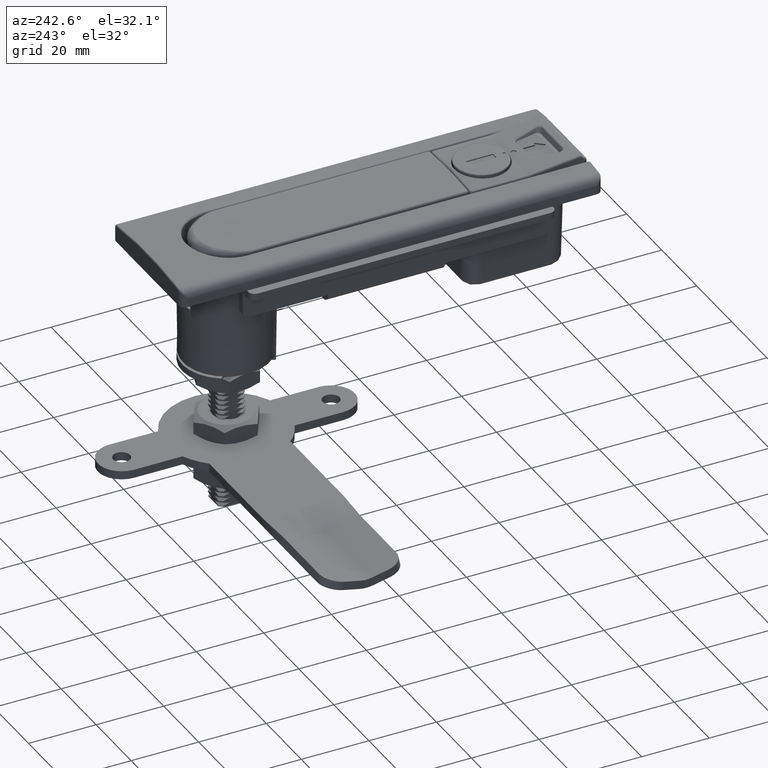
[diagram: clean part render]
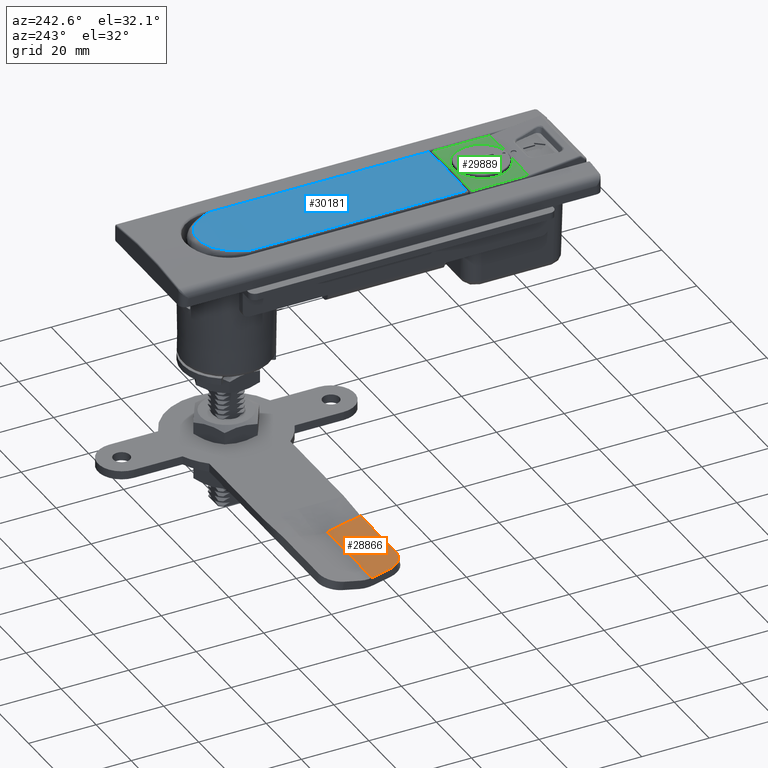
[diagram: same view with three faces highlighted in distinct colors, each labeled with its STEP entity id]
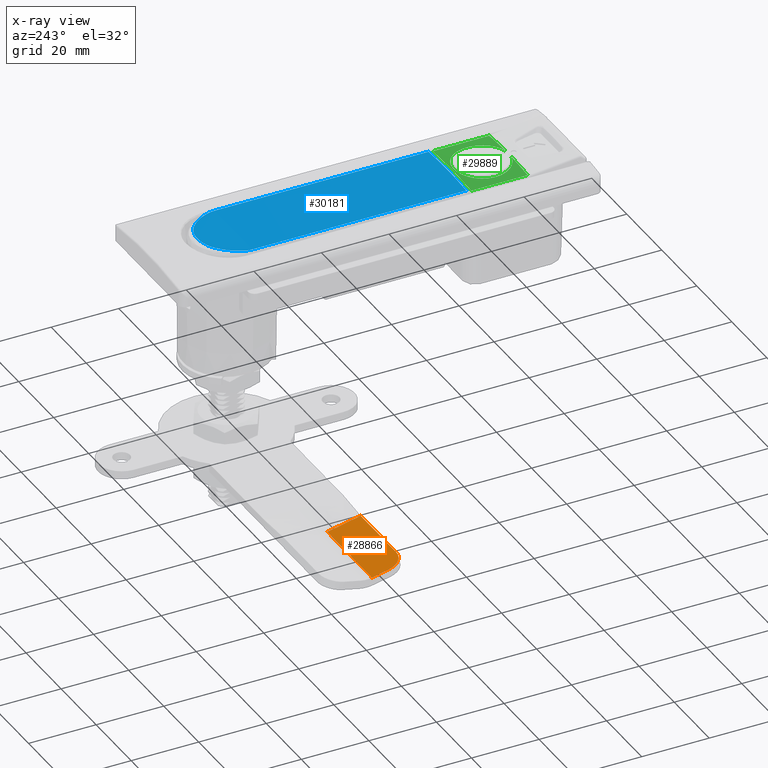
[diagram: x-ray of the same camera — body ghosted, the three highlighted faces saturated]
A machine part, auxiliary view with three faces highlighted in distinct colors.
The next image is the same camera in x-ray (body ghosted, the three faces saturated) — at least one of them is partly hidden behind the body in this view.
Their STEP definitions:

[orange] entity #28866 — the highlighted planar face has unit normal (0, 0.2148, 0.9767).
#1657=CIRCLE('',#30812,5.);
#2593=LINE('',#43201,#4365);
#2618=LINE('',#43364,#4390);
#2619=LINE('',#43369,#4391);
#2620=LINE('',#43370,#4392);
#4365=VECTOR('',#33780,20.45);
#4390=VECTOR('',#33821,10.087624506525);
#4391=VECTOR('',#33828,25.45);
#4392=VECTOR('',#33829,5.08762450652503);
#6539=FACE_OUTER_BOUND('',#8316,.T.);
#8316=EDGE_LOOP('',(#20425,#20426,#20427,#20428,#20429));
#12017=VERTEX_POINT('',#43188);
#12018=VERTEX_POINT('',#43189);
#12022=VERTEX_POINT('',#43199);
#12040=VERTEX_POINT('',#43344);
#12041=VERTEX_POINT('',#43368);
#15179=EDGE_CURVE('',#12017,#12018,#1657,.T.);
#15185=EDGE_CURVE('',#12017,#12022,#2593,.T.);
#15214=EDGE_CURVE('',#12040,#12022,#2618,.T.);
#15216=EDGE_CURVE('',#12041,#12040,#2619,.T.);
#15217=EDGE_CURVE('',#12018,#12041,#2620,.T.);
#20425=ORIENTED_EDGE('',*,*,#15179,.F.);
#20426=ORIENTED_EDGE('',*,*,#15185,.T.);
#20427=ORIENTED_EDGE('',*,*,#15214,.F.);
#20428=ORIENTED_EDGE('',*,*,#15216,.F.);
#20429=ORIENTED_EDGE('',*,*,#15217,.F.);
#28351=PLANE('',#30825);
#28866=ADVANCED_FACE('',(#6539),#28351,.T.);
#30812=AXIS2_PLACEMENT_3D('',#43190,#33770,#33771);
#30825=AXIS2_PLACEMENT_3D('',#43367,#33826,#33827);
#33770=DIRECTION('center_axis',(-0.214780516977873,0.,-0.976662341613885));
#33771=DIRECTION('ref_axis',(-0.690604564684711,0.707106781186547,0.151872760021807));
#33780=DIRECTION('',(0.,-1.,0.));
#33821=DIRECTION('',(-0.976662341613885,0.,0.214780516977873));
#33826=DIRECTION('center_axis',(0.214780516977873,0.,0.976662341613885));
#33827=DIRECTION('ref_axis',(-0.976662341613886,0.,0.214780516977871));
#33828=DIRECTION('',(0.,-1.,0.));
#33829=DIRECTION('',(0.976662341613885,0.,-0.214780516977873));
#43188=CARTESIAN_POINT('',(-11.4630487075553,75.,26.9416558540347));
#43189=CARTESIAN_POINT('',(-6.5797369994859,80.,25.8677532691453));
#43190=CARTESIAN_POINT('Origin',(-6.5797369994859,75.,25.8677532691453));
#43199=CARTESIAN_POINT('',(-11.4630487075553,54.55,26.9416558540347));
#43201=CARTESIAN_POINT('',(-11.4630487075553,80.,26.9416558540347));
#43344=CARTESIAN_POINT('',(-1.61084573569068,54.55,24.7750306474459));
#43364=CARTESIAN_POINT('',(-0.815915761204218,54.55,24.6002153979907));
#43367=CARTESIAN_POINT('Origin',(-1.61084573569095,80.,24.7750306474446));
#43368=CARTESIAN_POINT('',(-1.61084573569068,80.,24.7750306474459));
#43369=CARTESIAN_POINT('',(-1.61084573569068,80.,24.7750306474459));
#43370=CARTESIAN_POINT('',(-11.4630487075553,80.,26.9416558540347));

[blue] entity #30181 — the highlighted cylindrical surface (partial cylindrical patch) has radius 140 mm, axis along (0, -1, 0).
#1065=CYLINDRICAL_SURFACE('',#32332,140.);
#2198=CIRCLE('',#32333,140.);
#4008=LINE('',#71543,#5780);
#4009=LINE('',#71547,#5781);
#4010=LINE('',#71644,#5782);
#5780=VECTOR('',#38231,63.2028861634876);
#5781=VECTOR('',#38234,63.2028861634876);
#5782=VECTOR('',#38235,0.0063726446570796);
#7854=FACE_OUTER_BOUND('',#9702,.T.);
#9702=EDGE_LOOP('',(#27559,#27560,#27561,#27562,#27563,#27564,#27565,#27566,
#27567,#27568));
#11540=B_SPLINE_CURVE_WITH_KNOTS('',3,(#71532,#71533,#71534,#71535,#71536,
#71537,#71538,#71539,#71540,#71541),.UNSPECIFIED.,.F.,.F.,(4,2,2,2,4),(0.,
0.289393054203013,0.498660144945326,0.780603694148318,1.),.UNSPECIFIED.);
#11541=B_SPLINE_CURVE_WITH_KNOTS('',3,(#71549,#71550,#71551,#71552,#71553,
#71554,#71555,#71556,#71557,#71558),.UNSPECIFIED.,.F.,.F.,(4,2,2,2,4),(0.,
0.259611384855437,0.500920465509193,0.750559893096142,1.),.UNSPECIFIED.);
#11542=B_SPLINE_CURVE_WITH_KNOTS('',3,(#71560,#71561,#71562,#71563,#71564,
#71565,#71566,#71567,#71568,#71569,#71570,#71571,#71572,#71573,#71574,#71575,
#71576,#71577,#71578,#71579,#71580,#71581,#71582,#71583,#71584,#71585,#71586,
#71587,#71588,#71589,#71590,#71591,#71592,#71593,#71594,#71595,#71596,#71597,
#71598,#71599,#71600,#71601,#71602,#71603),.UNSPECIFIED.,.F.,.F.,(4,2,2,
2,2,2,2,2,2,2,2,2,2,2,2,2,2,2,2,2,2,4),(0.,0.0572721109676586,0.117668837168852,
0.126496551982,0.188248275991,0.25,0.252909814949107,0.296318323806571,
0.339782417886925,0.383650065185664,0.427885489163606,0.472950052635178,
0.5,0.565218489227532,0.631165441785138,0.697893945892483,0.755138419598079,
0.823587644056007,0.879730638896033,0.940488076659595,0.971618288875216,
1.),.UNSPECIFIED.);
#11543=B_SPLINE_CURVE_WITH_KNOTS('',3,(#71605,#71606,#71607,#71608,#71609,
#71610,#71611,#71612,#71613,#71614,#71615,#71616,#71617,#71618,#71619,#71620,
#71621,#71622,#71623,#71624,#71625,#71626,#71627,#71628,#71629,#71630,#71631,
#71632,#71633,#71634,#71635,#71636,#71637,#71638,#71639,#71640,#71641,#71642),
 .UNSPECIFIED.,.F.,.F.,(4,2,2,2,2,2,2,2,2,2,2,2,2,2,2,2,2,2,4),(0.,0.032615280316597,
0.0657047075327678,0.100436198080507,0.130461121266388,0.177002085580131,
0.223832550870701,0.253043576270446,0.30050115877739,0.350375869083043,
0.399903043708636,0.451120912584508,0.5,0.604948902103006,0.711925879900341,
0.755721234714058,0.86305304986892,0.970117015832023,1.),.UNSPECIFIED.);
#11544=B_SPLINE_CURVE_WITH_KNOTS('',3,(#71646,#71647,#71648,#71649,#71650,
#71651,#71652,#71653,#71654,#71655,#71656,#71657,#71658,#71659,#71660,#71661,
#71662,#71663,#71664,#71665,#71666,#71667,#71668,#71669,#71670,#71671,#71672,
#71673,#71674,#71675,#71676,#71677,#71678,#71679,#71680,#71681,#71682,#71683,
#71684,#71685,#71686,#71687,#71688,#71689,#71690,#71691,#71692,#71693,#71694,
#71695),.UNSPECIFIED.,.F.,.F.,(4,2,2,2,2,2,2,2,2,2,2,2,2,2,2,2,2,2,2,2,
2,2,2,2,4),(0.,0.0589416788744686,0.11769152918686,0.176144804625084,0.233932875524744,
0.249103700173611,0.305909660269591,0.360967624148623,0.414990970880357,
0.467365665287153,0.5,0.541911829003036,0.584033813369351,0.625920583497438,
0.667425861126168,0.708712930563084,0.75,0.791269869780345,0.83177336264564,
0.871698479066327,0.904232967389351,0.935190208485148,0.965074276237704,
0.993994041564726,1.),.UNSPECIFIED.);
#11545=B_SPLINE_CURVE_WITH_KNOTS('',3,(#71696,#71697,#71698,#71699,#71700,
#71701,#71702,#71703,#71704,#71705,#71706,#71707,#71708,#71709,#71710,#71711,
#71712,#71713,#71714,#71715,#71716,#71717,#71718,#71719,#71720,#71721),
 .UNSPECIFIED.,.F.,.F.,(4,2,2,2,2,2,2,2,2,2,2,2,4),(0.,0.0745238916004494,
0.123255860772173,0.247380352253632,0.372452783860528,0.497525215467424,
0.614292716332421,0.728988491243301,0.74892677885138,0.860891496687705,
0.874603862214018,0.969114582578439,1.),.UNSPECIFIED.);
#14372=VERTEX_POINT('',#71530);
#14373=VERTEX_POINT('',#71531);
#14374=VERTEX_POINT('',#71542);
#14375=VERTEX_POINT('',#71544);
#14376=VERTEX_POINT('',#71546);
#14377=VERTEX_POINT('',#71548);
#14378=VERTEX_POINT('',#71559);
#14379=VERTEX_POINT('',#71604);
#14380=VERTEX_POINT('',#71643);
#14381=VERTEX_POINT('',#71645);
#18799=EDGE_CURVE('',#14372,#14373,#11540,.T.);
#18800=EDGE_CURVE('',#14373,#14374,#4008,.T.);
#18801=EDGE_CURVE('',#14374,#14375,#2198,.T.);
#18802=EDGE_CURVE('',#14375,#14376,#4009,.T.);
#18803=EDGE_CURVE('',#14376,#14377,#11541,.T.);
#18804=EDGE_CURVE('',#14377,#14378,#11542,.T.);
#18805=EDGE_CURVE('',#14378,#14379,#11543,.T.);
#18806=EDGE_CURVE('',#14379,#14380,#4010,.T.);
#18807=EDGE_CURVE('',#14380,#14381,#11544,.T.);
#18808=EDGE_CURVE('',#14381,#14372,#11545,.T.);
#27559=ORIENTED_EDGE('',*,*,#18799,.T.);
#27560=ORIENTED_EDGE('',*,*,#18800,.T.);
#27561=ORIENTED_EDGE('',*,*,#18801,.T.);
#27562=ORIENTED_EDGE('',*,*,#18802,.T.);
#27563=ORIENTED_EDGE('',*,*,#18803,.T.);
#27564=ORIENTED_EDGE('',*,*,#18804,.T.);
#27565=ORIENTED_EDGE('',*,*,#18805,.T.);
#27566=ORIENTED_EDGE('',*,*,#18806,.T.);
#27567=ORIENTED_EDGE('',*,*,#18807,.T.);
#27568=ORIENTED_EDGE('',*,*,#18808,.T.);
#30181=ADVANCED_FACE('',(#7854),#1065,.T.);
#32332=AXIS2_PLACEMENT_3D('',#71529,#38229,#38230);
#32333=AXIS2_PLACEMENT_3D('',#71545,#38232,#38233);
#38229=DIRECTION('center_axis',(1.,0.,0.));
#38230=DIRECTION('ref_axis',(0.,1.22464679914735E-16,-1.));
#38231=DIRECTION('',(1.,0.,0.));
#38232=DIRECTION('center_axis',(-1.,-2.44542516437259E-15,0.));
#38233=DIRECTION('ref_axis',(2.44542516437259E-15,-1.,0.));
#38234=DIRECTION('',(-1.,0.,0.));
#38235=DIRECTION('',(1.97736291909587E-10,1.,0.));
#71529=CARTESIAN_POINT('Origin',(86.0499999999996,1.4210854715202E-14,102.25));
#71530=CARTESIAN_POINT('',(-0.353727586653654,10.3451305063334,-37.3672563647021));
#71531=CARTESIAN_POINT('',(2.24711383651238,10.7962697274032,-37.3330955380098));
#71532=CARTESIAN_POINT('Ctrl Pts',(-0.35372758665364,10.3451305063334,-37.367256364702));
#71533=CARTESIAN_POINT('Ctrl Pts',(-0.110056579452065,10.4314271542089,
-37.360862097204));
#71534=CARTESIAN_POINT('Ctrl Pts',(0.13561915081854,10.5053684553918,-37.35530454542));
#71535=CARTESIAN_POINT('Ctrl Pts',(0.563163640184181,10.6116143894754,-37.3472622920788));
#71536=CARTESIAN_POINT('Ctrl Pts',(0.743865465584876,10.6497777686688,-37.3443524912071));
#71537=CARTESIAN_POINT('Ctrl Pts',(1.17142288055792,10.7243041097961,-37.338649760268));
#71538=CARTESIAN_POINT('Ctrl Pts',(1.41879589789009,10.7552481541482,-37.3362636382768));
#71539=CARTESIAN_POINT('Ctrl Pts',(1.86004750892058,10.7888559560388,-37.3336695489751));
#71540=CARTESIAN_POINT('Ctrl Pts',(2.05361997318925,10.7962697272449,-37.333095538022));
#71541=CARTESIAN_POINT('Ctrl Pts',(2.24711383651238,10.7962697274032,-37.3330955380098));
#71542=CARTESIAN_POINT('',(65.45,10.7962697274032,-37.3330955380098));
#71543=CARTESIAN_POINT('',(86.0499999999996,10.7962697274032,-37.3330955380098));
#71544=CARTESIAN_POINT('',(65.45,-10.7962697272615,-37.3330955380208));
#71545=CARTESIAN_POINT('Origin',(65.45,1.4210854715202E-14,102.25));
#71546=CARTESIAN_POINT('',(2.24711383651238,-10.7962697272522,-37.3330955380215));
#71547=CARTESIAN_POINT('',(86.0499999999996,-10.7962697272522,-37.3330955380215));
#71548=CARTESIAN_POINT('',(-0.353727132907031,-10.3451290588633,-37.3672564719543));
#71549=CARTESIAN_POINT('Ctrl Pts',(2.24711383651238,-10.7962697274033,-37.3330955380098));
#71550=CARTESIAN_POINT('Ctrl Pts',(2.01832819457702,-10.7962697272242,-37.3330955380236));
#71551=CARTESIAN_POINT('Ctrl Pts',(1.78907671120788,-10.7858970880697,-37.3339019352406));
#71552=CARTESIAN_POINT('Ctrl Pts',(1.34809432393406,-10.7461554850029,-37.3369666457314));
#71553=CARTESIAN_POINT('Ctrl Pts',(1.13626837508124,-10.718177909471,-37.3391185356832));
#71554=CARTESIAN_POINT('Ctrl Pts',(0.708476799671817,-10.6436077119533,
-37.3448246212876));
#71555=CARTESIAN_POINT('Ctrl Pts',(0.492610279712204,-10.5964284801576,
-37.3484200065565));
#71556=CARTESIAN_POINT('Ctrl Pts',(0.066314754781843,-10.48427839237,-37.3568876037335));
#71557=CARTESIAN_POINT('Ctrl Pts',(-0.143471736489057,-10.4195804652863,
-37.3617398945088));
#71558=CARTESIAN_POINT('Ctrl Pts',(-0.353727132907031,-10.3451290588633,
-37.3672564719543));
#71559=CARTESIAN_POINT('',(-6.61232925964558,-5.82981234032018,-37.6285662211215));
#71560=CARTESIAN_POINT('Ctrl Pts',(-0.353727132907142,-10.3451290588633,
-37.3672564719543));
#71561=CARTESIAN_POINT('Ctrl Pts',(-0.494653735330112,-10.2952269683201,
-37.3709540347057));
#71562=CARTESIAN_POINT('Ctrl Pts',(-0.634963580101047,-10.2428152664712,
-37.3748106161049));
#71563=CARTESIAN_POINT('Ctrl Pts',(-0.921301029922962,-10.1302703650086,
-37.3830224444617));
#71564=CARTESIAN_POINT('Ctrl Pts',(-1.06722483194911,-10.0698717278421,
-37.3873934624492));
#71565=CARTESIAN_POINT('Ctrl Pts',(-1.23284567244137,-9.99775777815718,
-37.3925612716676));
#71566=CARTESIAN_POINT('Ctrl Pts',(-1.25393572357246,-9.98850767932716,
-37.3932232353558));
#71567=CARTESIAN_POINT('Ctrl Pts',(-1.42230217559195,-9.91412232497857,
-37.3985389338492));
#71568=CARTESIAN_POINT('Ctrl Pts',(-1.5683223132338,-9.84636840351509,-37.4033351894164));
#71569=CARTESIAN_POINT('Ctrl Pts',(-1.8582528209102,-9.70534492841438,-37.4132065752151));
#71570=CARTESIAN_POINT('Ctrl Pts',(-2.00216351592869,-9.63207511416045,
-37.4182817630588));
#71571=CARTESIAN_POINT('Ctrl Pts',(-2.15196293523234,-9.55232666544316,
-37.4237378288041));
#71572=CARTESIAN_POINT('Ctrl Pts',(-2.15870566723288,-9.54872959906284,
-37.4239837867297));
#71573=CARTESIAN_POINT('Ctrl Pts',(-2.26606005500094,-9.49133994281879,
-37.4279057058667));
#71574=CARTESIAN_POINT('Ctrl Pts',(-2.36698882161228,-9.43571411278533,
-37.4316757683464));
#71575=CARTESIAN_POINT('Ctrl Pts',(-2.56862962801183,-9.32113566477149,
-37.4393683886768));
#71576=CARTESIAN_POINT('Ctrl Pts',(-2.66934103086349,-9.26217898960641,
-37.4432910997009));
#71577=CARTESIAN_POINT('Ctrl Pts',(-2.8704116695666,-9.14096560027832,-37.4512752741443));
#71578=CARTESIAN_POINT('Ctrl Pts',(-2.97075874905265,-9.07868346223797,
-37.4553376480356));
#71579=CARTESIAN_POINT('Ctrl Pts',(-3.17007835044321,-8.951422067491,-37.4635497165377));
#71580=CARTESIAN_POINT('Ctrl Pts',(-3.26903213032946,-8.886424794054,-37.4676998130493));
#71581=CARTESIAN_POINT('Ctrl Pts',(-3.46566337513001,-8.75372121265918,
-37.4760776333928));
#71582=CARTESIAN_POINT('Ctrl Pts',(-3.56328197098699,-8.68598719292338,
-37.4803053063733));
#71583=CARTESIAN_POINT('Ctrl Pts',(-3.71625291385118,-8.57704759066774,
-37.4870241496972));
#71584=CARTESIAN_POINT('Ctrl Pts',(-3.77290241318732,-8.53606195841337,
-37.4895338989743));
#71585=CARTESIAN_POINT('Ctrl Pts',(-3.96336265731434,-8.39617326228929,
-37.498037866434));
#71586=CARTESIAN_POINT('Ctrl Pts',(-4.09563219567507,-8.29536911390876,
-37.5040598328155));
#71587=CARTESIAN_POINT('Ctrl Pts',(-4.35747941355429,-8.08861864544701,
-37.5161780326396));
#71588=CARTESIAN_POINT('Ctrl Pts',(-4.48701069627846,-7.98262713291059,
-37.5222744078659));
#71589=CARTESIAN_POINT('Ctrl Pts',(-4.74385688620703,-7.765050721661,-37.5345317118961));
#71590=CARTESIAN_POINT('Ctrl Pts',(-4.87112755302295,-7.65341408920956,
-37.5406926190053));
#71591=CARTESIAN_POINT('Ctrl Pts',(-5.10445023931245,-7.44162034922853,
-37.5521161793487));
#71592=CARTESIAN_POINT('Ctrl Pts',(-5.21094652084108,-7.34208606672686,
-37.5573820626346));
#71593=CARTESIAN_POINT('Ctrl Pts',(-5.4423172396638,-7.11946505103497,-37.568911289667));
#71594=CARTESIAN_POINT('Ctrl Pts',(-5.56671643718255,-6.99558764361944,
-37.5751687556409));
#71595=CARTESIAN_POINT('Ctrl Pts',(-5.79064754598916,-6.76482217928128,
-37.5865044693662));
#71596=CARTESIAN_POINT('Ctrl Pts',(-5.89062847903359,-6.65888313518196,
-37.5915924363625));
#71597=CARTESIAN_POINT('Ctrl Pts',(-6.0970909814487,-6.43390879681861,-37.6021309083624));
#71598=CARTESIAN_POINT('Ctrl Pts',(-6.20341712690025,-6.31452336758485,
-37.6075764689473));
#71599=CARTESIAN_POINT('Ctrl Pts',(-6.36273812456172,-6.13008893582647,
-37.6157424872464));
#71600=CARTESIAN_POINT('Ctrl Pts',(-6.41647665292945,-6.06690392038737,
-37.6184972990504));
#71601=CARTESIAN_POINT('Ctrl Pts',(-6.5178357049473,-5.94566237130956,-37.6237012320286));
#71602=CARTESIAN_POINT('Ctrl Pts',(-6.56557731832253,-5.88764571656854,
-37.6261558609095));
#71603=CARTESIAN_POINT('Ctrl Pts',(-6.61232925964558,-5.82981234032018,
-37.6285662211215));
#71604=CARTESIAN_POINT('',(-8.54999966934618,-0.00318632232333693,-37.7499999637406));
#71605=CARTESIAN_POINT('Ctrl Pts',(-6.61232925964559,-5.82981234032017,
-37.6285662211215));
#71606=CARTESIAN_POINT('Ctrl Pts',(-6.65489895924595,-5.77715250599944,
-37.6307609601745));
#71607=CARTESIAN_POINT('Ctrl Pts',(-6.69684266605118,-5.72381364044933,
-37.632955108216));
#71608=CARTESIAN_POINT('Ctrl Pts',(-6.78008825105416,-5.61491808332692,
-37.6373703324432));
#71609=CARTESIAN_POINT('Ctrl Pts',(-6.82137207991406,-5.55934022943458,
-37.6395913402297));
#71610=CARTESIAN_POINT('Ctrl Pts',(-6.90479001065173,-5.44378316069227,
-37.6441371121553));
#71611=CARTESIAN_POINT('Ctrl Pts',(-6.94686464290941,-5.38372222217143,
-37.6464615556024));
#71612=CARTESIAN_POINT('Ctrl Pts',(-7.02432896750319,-5.26990473317887,
-37.6507903477296));
#71613=CARTESIAN_POINT('Ctrl Pts',(-7.05985299458426,-5.21639619956793,
-37.6527954171993));
#71614=CARTESIAN_POINT('Ctrl Pts',(-7.14970555378289,-5.07787180193782,
-37.6579065589943));
#71615=CARTESIAN_POINT('Ctrl Pts',(-7.20329411646843,-4.99195567005062,
-37.6610000535386));
#71616=CARTESIAN_POINT('Ctrl Pts',(-7.30819707985557,-4.81680834227302,
-37.6671396042343));
#71617=CARTESIAN_POINT('Ctrl Pts',(-7.3594951142912,-4.727560120139,-37.6701852118067));
#71618=CARTESIAN_POINT('Ctrl Pts',(-7.44027989980669,-4.58094909148527,
-37.6750443875537));
#71619=CARTESIAN_POINT('Ctrl Pts',(-7.47071229305299,-4.52422386264464,
-37.6768903933543));
#71620=CARTESIAN_POINT('Ctrl Pts',(-7.54888734220133,-4.37451781268208,
-37.6816697174766));
#71621=CARTESIAN_POINT('Ctrl Pts',(-7.59554953443477,-4.28104971928105,
-37.6845601706324));
#71622=CARTESIAN_POINT('Ctrl Pts',(-7.6874268119837,-4.08850613349616,-37.6903191269615));
#71623=CARTESIAN_POINT('Ctrl Pts',(-7.7324468547191,-3.98938775506885,-37.6931789695189));
#71624=CARTESIAN_POINT('Ctrl Pts',(-7.81786911875855,-3.79186248590198,
-37.6986687086203));
#71625=CARTESIAN_POINT('Ctrl Pts',(-7.85830165139739,-3.69345586335722,
-37.701300052216));
#71626=CARTESIAN_POINT('Ctrl Pts',(-7.93612813143643,-3.49425485325214,
-37.7064188818915));
#71627=CARTESIAN_POINT('Ctrl Pts',(-7.97337127311403,-3.39349403318483,
-37.7088983550506));
#71628=CARTESIAN_POINT('Ctrl Pts',(-8.04163472133068,-3.19859120193556,
-37.7134873388728));
#71629=CARTESIAN_POINT('Ctrl Pts',(-8.07286224292169,-3.10435739623592,
-37.7156085923186));
#71630=CARTESIAN_POINT('Ctrl Pts',(-8.16467274003736,-2.81217550617959,
-37.7218951216825));
#71631=CARTESIAN_POINT('Ctrl Pts',(-8.22062369805072,-2.61051063336755,
-37.7258060874334));
#71632=CARTESIAN_POINT('Ctrl Pts',(-8.32034220245292,-2.19853895535642,
-37.7328874819235));
#71633=CARTESIAN_POINT('Ctrl Pts',(-8.36385299914876,-1.98813977499532,
-37.7360422035483));
#71634=CARTESIAN_POINT('Ctrl Pts',(-8.41566323101137,-1.6881547966968,-37.7398482111309));
#71635=CARTESIAN_POINT('Ctrl Pts',(-8.42958088470454,-1.6006071254306,-37.7408775387884));
#71636=CARTESIAN_POINT('Ctrl Pts',(-8.47371246167955,-1.2970899072815,-37.744157126382));
#71637=CARTESIAN_POINT('Ctrl Pts',(-8.49825718368464,-1.07913759061361,
-37.7460126391248));
#71638=CARTESIAN_POINT('Ctrl Pts',(-8.53359606093746,-0.638902461471167,
-37.7487123957389));
#71639=CARTESIAN_POINT('Ctrl Pts',(-8.54442381983572,-0.416631226483351,
-37.7495591721515));
#71640=CARTESIAN_POINT('Ctrl Pts',(-8.54943235079049,-0.129197192911361,
-37.7499542603917));
#71641=CARTESIAN_POINT('Ctrl Pts',(-8.54998657258724,-0.0662866274004509,
-37.7499985276127));
#71642=CARTESIAN_POINT('Ctrl Pts',(-8.54999966934598,-0.00318632236188154,
-37.7499999637406));
#71643=CARTESIAN_POINT('',(-8.54999966934477,0.00318632233374267,-37.7499999637406));
#71644=CARTESIAN_POINT('',(-8.54999966934598,-0.00318632235404772,-37.7499999637406));
#71645=CARTESIAN_POINT('',(-6.61234221626769,5.82982513299533,-37.628565687952));
#71646=CARTESIAN_POINT('Ctrl Pts',(-8.54999966934472,0.0031863223540175,
-37.7499999637406));
#71647=CARTESIAN_POINT('Ctrl Pts',(-8.54997388994887,0.127391459303421,
-37.7499971369006));
#71648=CARTESIAN_POINT('Ctrl Pts',(-8.54785194780802,0.249893705274131,
-37.7498285506795));
#71649=CARTESIAN_POINT('Ctrl Pts',(-8.53962229462366,0.491786312578959,
-37.7491861213754));
#71650=CARTESIAN_POINT('Ctrl Pts',(-8.53352764020465,0.611185812419906,
-37.7487132534776));
#71651=CARTESIAN_POINT('Ctrl Pts',(-8.51749643453086,0.847390356783872,
-37.7474821651319));
#71652=CARTESIAN_POINT('Ctrl Pts',(-8.50757950695917,0.96420572382342,-37.7467253812266));
#71653=CARTESIAN_POINT('Ctrl Pts',(-8.48402470113446,1.1952425738483,-37.7449435963118));
#71654=CARTESIAN_POINT('Ctrl Pts',(-8.47043050689545,1.30947868310732,-37.7439217308155));
#71655=CARTESIAN_POINT('Ctrl Pts',(-8.45081696976699,1.45335287169627,-37.7424592466231));
#71656=CARTESIAN_POINT('Ctrl Pts',(-8.44660454997031,1.4832503803183,-37.7421457135975));
#71657=CARTESIAN_POINT('Ctrl Pts',(-8.42597536427804,1.6250350556597,-37.7406132002402));
#71658=CARTESIAN_POINT('Ctrl Pts',(-8.40782104708768,1.73669261437992,-37.739272074371));
#71659=CARTESIAN_POINT('Ctrl Pts',(-8.36811832315433,1.95677538303605,-37.7363654053582));
#71660=CARTESIAN_POINT('Ctrl Pts',(-8.3466915869077,2.0651944017627,-37.7348080168212));
#71661=CARTESIAN_POINT('Ctrl Pts',(-8.30016749485614,2.28080246253493,-37.7314593101989));
#71662=CARTESIAN_POINT('Ctrl Pts',(-8.2751468451863,2.38797640819866,-37.7296729275696));
#71663=CARTESIAN_POINT('Ctrl Pts',(-8.22155769835592,2.60039289118152,-37.7258859316802));
#71664=CARTESIAN_POINT('Ctrl Pts',(-8.19312085756366,2.70559461592949,-37.7238935076161));
#71665=CARTESIAN_POINT('Ctrl Pts',(-8.14323736147687,2.87779950267444,-37.7204347571792));
#71666=CARTESIAN_POINT('Ctrl Pts',(-8.12319480328354,2.94425502714708,-37.7190531335472));
#71667=CARTESIAN_POINT('Ctrl Pts',(-8.0752172467594,3.09698994344606,-37.7157673527123));
#71668=CARTESIAN_POINT('Ctrl Pts',(-8.04732264029895,3.18137681005717,-37.7138719971696));
#71669=CARTESIAN_POINT('Ctrl Pts',(-7.98945660500948,3.34834559048629,-37.7099749384758));
#71670=CARTESIAN_POINT('Ctrl Pts',(-7.95947539655299,3.43091670791771,-37.7079727191394));
#71671=CARTESIAN_POINT('Ctrl Pts',(-7.89753697932474,3.59411254314669,-37.7038748270099));
#71672=CARTESIAN_POINT('Ctrl Pts',(-7.86559166173295,3.67474589762777,-37.701779709525));
#71673=CARTESIAN_POINT('Ctrl Pts',(-7.79958182348321,3.83453719963978,-37.6974924092519));
#71674=CARTESIAN_POINT('Ctrl Pts',(-7.7655392296168,3.91370221883201,-37.6953012602513));
#71675=CARTESIAN_POINT('Ctrl Pts',(-7.69487748392807,4.0715701151102,-37.6907988897232));
#71676=CARTESIAN_POINT('Ctrl Pts',(-7.65827290635188,4.15027357794974,-37.6884883418547));
#71677=CARTESIAN_POINT('Ctrl Pts',(-7.58185228567629,4.30827544349541,-37.6837154319463));
#71678=CARTESIAN_POINT('Ctrl Pts',(-7.54203645709611,4.38757425436482,-37.6812530556921));
#71679=CARTESIAN_POINT('Ctrl Pts',(-7.45863002093916,4.54732919642252,-37.6761525999652));
#71680=CARTESIAN_POINT('Ctrl Pts',(-7.41539511783805,4.62710888501079,-37.6735367630488));
#71681=CARTESIAN_POINT('Ctrl Pts',(-7.32695345317183,4.78424290580811,-37.6682513006086));
#71682=CARTESIAN_POINT('Ctrl Pts',(-7.28179815852727,4.86161469605554,-37.6655836006984));
#71683=CARTESIAN_POINT('Ctrl Pts',(-7.18980875577087,5.01363592502572,-37.6602181369133));
#71684=CARTESIAN_POINT('Ctrl Pts',(-7.14300781781983,5.08830841705475,-37.6575213693158));
#71685=CARTESIAN_POINT('Ctrl Pts',(-7.05640011070326,5.22180928937018,-37.6525957789674));
#71686=CARTESIAN_POINT('Ctrl Pts',(-7.01714691972205,5.28080829102422,-37.6503816135355));
#71687=CARTESIAN_POINT('Ctrl Pts',(-6.93958832528799,5.39421359843173,-37.6460554369764));
#71688=CARTESIAN_POINT('Ctrl Pts',(-6.90132884461573,5.44870439914225,-37.64394366677));
#71689=CARTESIAN_POINT('Ctrl Pts',(-6.8251381116859,5.55428646022543,-37.6397906917038));
#71690=CARTESIAN_POINT('Ctrl Pts',(-6.78724122207819,5.60543041912051,-37.637749571915));
#71691=CARTESIAN_POINT('Ctrl Pts',(-6.71171232279152,5.70468445390689,-37.6337350220747));
#71692=CARTESIAN_POINT('Ctrl Pts',(-6.67411114848538,5.75283936782364,-37.6317615309729));
#71693=CARTESIAN_POINT('Ctrl Pts',(-6.62818965160254,5.81018818886758,-37.6293831144911));
#71694=CARTESIAN_POINT('Ctrl Pts',(-6.62027471357734,5.8200212155407,-37.6289742932597));
#71695=CARTESIAN_POINT('Ctrl Pts',(-6.61234221626771,5.82982513299531,-37.628565687952));
#71696=CARTESIAN_POINT('Ctrl Pts',(-6.61234221626769,5.82982513299533,-37.628565687952));
#71697=CARTESIAN_POINT('Ctrl Pts',(-6.49320412404012,5.9770700622228,-37.6224288492956));
#71698=CARTESIAN_POINT('Ctrl Pts',(-6.36954652077268,6.1237849451276,-37.6160779043671));
#71699=CARTESIAN_POINT('Ctrl Pts',(-6.15958981023504,6.36368339000547,-37.6053260162694));
#71700=CARTESIAN_POINT('Ctrl Pts',(-6.07517180024931,6.45782110592321,-37.6010108512249));
#71701=CARTESIAN_POINT('Ctrl Pts',(-5.77193067636364,6.78811018605285,-37.5855388833044));
#71702=CARTESIAN_POINT('Ctrl Pts',(-5.54764779804719,7.01805212435644,-37.5741636158741));
#71703=CARTESIAN_POINT('Ctrl Pts',(-5.08271474904553,7.46541437575181,-37.5509947677092));
#71704=CARTESIAN_POINT('Ctrl Pts',(-4.84197318751824,7.68265494990636,-37.5391985304523));
#71705=CARTESIAN_POINT('Ctrl Pts',(-4.34610095715286,8.10116902696405,-37.5155691006181));
#71706=CARTESIAN_POINT('Ctrl Pts',(-4.09096997109261,8.30244351463861,-37.5037357427327));
#71707=CARTESIAN_POINT('Ctrl Pts',(-3.58400955115868,8.67480726900166,-37.4810994808374));
#71708=CARTESIAN_POINT('Ctrl Pts',(-3.33309036932144,8.84700423915042,-37.4702825197813));
#71709=CARTESIAN_POINT('Ctrl Pts',(-2.82411060685389,9.17212735951567,-37.4493126738166));
#71710=CARTESIAN_POINT('Ctrl Pts',(-2.56625523834094,9.32534173268059,-37.4391512983406));
#71711=CARTESIAN_POINT('Ctrl Pts',(-2.25724019238818,9.49522665477191,-37.4276335080391));
#71712=CARTESIAN_POINT('Ctrl Pts',(-2.21131423720838,9.52012872074319,-37.4259383688319));
#71713=CARTESIAN_POINT('Ctrl Pts',(-1.90641674330365,9.68315069651196,-37.4147981095285));
#71714=CARTESIAN_POINT('Ctrl Pts',(-1.64252921547608,9.81334509382415,-37.4056948386656));
#71715=CARTESIAN_POINT('Ctrl Pts',(-1.34097427777319,9.94967222128034,-37.3959961700847));
#71716=CARTESIAN_POINT('Ctrl Pts',(-1.30800074453595,9.96441541568722,-37.3949449138548));
#71717=CARTESIAN_POINT('Ctrl Pts',(-1.0472014334037,10.0797304356132,-37.3867044420753));
#71718=CARTESIAN_POINT('Ctrl Pts',(-0.815370713178205,10.1742984022448,
-37.3798367421223));
#71719=CARTESIAN_POINT('Ctrl Pts',(-0.506260115413312,10.2903062967161,
-37.3713107341536));
#71720=CARTESIAN_POINT('Ctrl Pts',(-0.43000327925156,10.3181172941091,-37.369257945403));
#71721=CARTESIAN_POINT('Ctrl Pts',(-0.353727586653656,10.3451305063334,
-37.3672563647021));

[green] entity #29889 — the highlighted face is a freeform B-spline surface patch.
#1204=ELLIPSE('',#31795,0.100949259554901,0.100062188575739);
#1205=ELLIPSE('',#31796,0.100920536411005,0.100126171183683);
#1206=ELLIPSE('',#31797,84.7746318184996,59.8258751478948);
#1207=ELLIPSE('',#31798,84.7746243089694,59.8258645402258);
#3706=LINE('',#66626,#5478);
#3707=LINE('',#66638,#5479);
#3708=LINE('',#66640,#5480);
#3709=LINE('',#66791,#5481);
#5478=VECTOR('',#36853,16.6000004108478);
#5479=VECTOR('',#36858,16.600000410849);
#5480=VECTOR('',#36859,0.000305852506899714);
#5481=VECTOR('',#36864,0.000305852508394685);
#6248=B_SPLINE_SURFACE_WITH_KNOTS('',3,1,((#66610,#66611),(#66612,#66613),
(#66614,#66615),(#66616,#66617),(#66618,#66619),(#66620,#66621),(#66622,
#66623)),.UNSPECIFIED.,.F.,.F.,.F.,(4,1,1,1,4),(2,2),(0.,0.25,0.5,0.75,
1.),(0.,3.0018816000034),.UNSPECIFIED.);
#7562=FACE_OUTER_BOUND('',#9395,.T.);
#9395=EDGE_LOOP('',(#26130,#26131,#26132,#26133,#26134,#26135,#26136,#26137,
#26138,#26139));
#11433=B_SPLINE_CURVE_WITH_KNOTS('',3,(#66630,#66631,#66632,#66633,#66634),
 .UNSPECIFIED.,.F.,.F.,(4,1,4),(0.,0.500000000000687,1.),.UNSPECIFIED.);
#11434=B_SPLINE_CURVE_WITH_KNOTS('',3,(#66644,#66645,#66646,#66647,#66648,
#66649,#66650,#66651,#66652,#66653,#66654,#66655,#66656,#66657,#66658,#66659,
#66660,#66661,#66662,#66663,#66664,#66665,#66666,#66667,#66668,#66669,#66670,
#66671,#66672,#66673,#66674,#66675,#66676,#66677,#66678,#66679,#66680,#66681,
#66682,#66683,#66684,#66685,#66686,#66687,#66688,#66689,#66690,#66691,#66692,
#66693,#66694,#66695,#66696,#66697,#66698,#66699,#66700,#66701,#66702,#66703,
#66704,#66705,#66706,#66707,#66708,#66709,#66710,#66711,#66712,#66713,#66714,
#66715,#66716,#66717,#66718,#66719,#66720,#66721,#66722,#66723,#66724,#66725,
#66726,#66727,#66728,#66729,#66730,#66731,#66732,#66733,#66734,#66735,#66736,
#66737,#66738,#66739,#66740,#66741,#66742,#66743,#66744,#66745,#66746,#66747,
#66748,#66749,#66750,#66751,#66752,#66753,#66754,#66755,#66756,#66757,#66758,
#66759,#66760,#66761,#66762,#66763,#66764,#66765,#66766,#66767,#66768,#66769,
#66770,#66771,#66772,#66773,#66774,#66775,#66776,#66777,#66778,#66779,#66780,
#66781,#66782,#66783,#66784,#66785,#66786,#66787,#66788),.UNSPECIFIED.,
 .F.,.F.,(4,2,2,2,2,2,2,2,2,2,2,2,2,2,2,2,2,2,2,2,2,2,2,2,2,2,2,2,2,2,2,
2,2,2,2,2,2,1,2,2,2,2,2,2,2,2,2,2,2,2,2,2,2,2,2,2,2,2,2,2,2,2,2,2,2,2,2,
2,2,2,2,2,4),(0.,0.0196426801997421,0.021584490678856,0.0417928236407077,
0.0439114906335357,0.0650502086633975,0.0667837275636655,0.0894206179252179,
0.11114709543451,0.125,0.125070547773074,0.148323172919947,0.170355641767912,
0.178889323073292,0.199843127663052,0.22004156060052,0.226105661828765,
0.245567326941391,0.249959344850285,0.25,0.270265888672768,0.277561124109858,
0.299499323434009,0.305399788193731,0.329783757041919,0.332508100064911,
0.358212632373413,0.374883761900777,0.375,0.396886759575599,0.402604417165855,
0.422482574107982,0.431331741693524,0.450232565132359,0.459736673737855,
0.478206309152313,0.486698050520358,0.499898018259873,0.5,0.518643492126647,
0.529013306177185,0.54796113883148,0.557667065351482,0.577315672028914,
0.585281892753744,0.606230598145786,0.611232947800388,0.625,0.625111730082944,
0.649410169565854,0.674717517812163,0.699898666964776,0.721709357093924,
0.724949333482388,0.745225856659283,0.74839479115677,0.75,0.750036287279179,
0.769664590040143,0.782851956921906,0.80335829446656,0.817011208608728,
0.838602763124993,0.853306532865995,0.874924292844941,0.875,0.904370648582984,
0.913994393548987,0.936816819437559,0.954360421613855,0.975591308300069,
0.996822194986283,1.),.UNSPECIFIED.);
#13937=VERTEX_POINT('',#66624);
#13938=VERTEX_POINT('',#66625);
#13939=VERTEX_POINT('',#66627);
#13940=VERTEX_POINT('',#66629);
#13941=VERTEX_POINT('',#66635);
#13942=VERTEX_POINT('',#66637);
#13943=VERTEX_POINT('',#66639);
#13944=VERTEX_POINT('',#66641);
#13945=VERTEX_POINT('',#66643);
#13946=VERTEX_POINT('',#66789);
#18082=EDGE_CURVE('',#13937,#13938,#3706,.T.);
#18083=EDGE_CURVE('',#13938,#13939,#1204,.T.);
#18084=EDGE_CURVE('',#13939,#13940,#11433,.T.);
#18085=EDGE_CURVE('',#13940,#13941,#1205,.T.);
#18086=EDGE_CURVE('',#13941,#13942,#3707,.T.);
#18087=EDGE_CURVE('',#13942,#13943,#3708,.T.);
#18088=EDGE_CURVE('',#13943,#13944,#1206,.T.);
#18089=EDGE_CURVE('',#13944,#13945,#11434,.T.);
#18090=EDGE_CURVE('',#13945,#13946,#1207,.T.);
#18091=EDGE_CURVE('',#13946,#13937,#3709,.T.);
#26130=ORIENTED_EDGE('',*,*,#18082,.T.);
#26131=ORIENTED_EDGE('',*,*,#18083,.T.);
#26132=ORIENTED_EDGE('',*,*,#18084,.T.);
#26133=ORIENTED_EDGE('',*,*,#18085,.T.);
#26134=ORIENTED_EDGE('',*,*,#18086,.T.);
#26135=ORIENTED_EDGE('',*,*,#18087,.T.);
#26136=ORIENTED_EDGE('',*,*,#18088,.T.);
#26137=ORIENTED_EDGE('',*,*,#18089,.T.);
#26138=ORIENTED_EDGE('',*,*,#18090,.T.);
#26139=ORIENTED_EDGE('',*,*,#18091,.T.);
#29889=ADVANCED_FACE('',(#7562),#6248,.F.);
#31795=AXIS2_PLACEMENT_3D('',#66628,#36854,#36855);
#31796=AXIS2_PLACEMENT_3D('',#66636,#36856,#36857);
#31797=AXIS2_PLACEMENT_3D('',#66642,#36860,#36861);
#31798=AXIS2_PLACEMENT_3D('',#66790,#36862,#36863);
#36853=DIRECTION('',(-1.,8.06848128361087E-15,0.));
#36854=DIRECTION('center_axis',(0.000212673426171907,-0.0910019854552273,
-0.995850688312872));
#36855=DIRECTION('ref_axis',(0.0304459897427543,0.995389637008733,-0.0909533520229331));
#36856=DIRECTION('center_axis',(0.000213155188745462,0.0910015096763418,
-0.995850731686979));
#36857=DIRECTION('ref_axis',(-0.0437537636529394,0.994897922053887,0.0909050760907254));
#36858=DIRECTION('',(1.,-8.06848128361087E-15,0.));
#36859=DIRECTION('',(-3.49832813218302E-5,-0.995765354701634,-0.0919312631921247));
#36860=DIRECTION('center_axis',(-1.,0.,0.));
#36861=DIRECTION('ref_axis',(0.,0.998939396080334,0.046044358597525));
#36862=DIRECTION('center_axis',(-1.,5.60818112152107E-15,-2.88139915350041E-13));
#36863=DIRECTION('ref_axis',(1.8869450487248E-14,0.998939396106597,-0.0460443580277377));
#36864=DIRECTION('',(3.49832813213711E-5,-0.995765354703085,0.0919312631763988));
#66610=CARTESIAN_POINT('Ctrl Pts',(66.0999999999949,21.8174242292844,-35.5500000001036));
#66611=CARTESIAN_POINT('Ctrl Pts',(96.118816000029,21.8174242292843,-35.5500000001036));
#66612=CARTESIAN_POINT('Ctrl Pts',(66.0999999999957,18.2417908139319,-36.2111111112146));
#66613=CARTESIAN_POINT('Ctrl Pts',(96.1188160000298,18.2417908139318,-36.2111111112146));
#66614=CARTESIAN_POINT('Ctrl Pts',(66.0999999999973,11.0003483328562,-37.2131551363717));
#66615=CARTESIAN_POINT('Ctrl Pts',(96.1188160000313,11.0003483328561,-37.2131551363717));
#66616=CARTESIAN_POINT('Ctrl Pts',(66.0999999999997,1.47561962648979E-11,
-37.7184224319691));
#66617=CARTESIAN_POINT('Ctrl Pts',(96.1188160000337,1.46336276429792E-11,
-37.7184224319691));
#66618=CARTESIAN_POINT('Ctrl Pts',(66.1000000000022,-11.0003483328267,-37.2131551363717));
#66619=CARTESIAN_POINT('Ctrl Pts',(96.1188160000362,-11.0003483328268,-37.2131551363717));
#66620=CARTESIAN_POINT('Ctrl Pts',(66.1000000000038,-18.2417908139024,-36.2111111112146));
#66621=CARTESIAN_POINT('Ctrl Pts',(96.1188160000379,-18.2417908139025,-36.2111111112146));
#66622=CARTESIAN_POINT('Ctrl Pts',(66.1000000000046,-21.8174242292549,-35.5500000001036));
#66623=CARTESIAN_POINT('Ctrl Pts',(96.1188160000387,-21.817424229255,-35.5500000001036));
#66624=CARTESIAN_POINT('',(83.3000004108477,-10.9958156337566,-37.0451545991827));
#66625=CARTESIAN_POINT('',(66.6999999999999,-10.995815638186,-37.0451546297489));
#66626=CARTESIAN_POINT('',(83.2999999999993,-10.9958156381861,-37.0451546297489));
#66627=CARTESIAN_POINT('',(66.5999999999999,-10.8953963734157,-37.0543524140374));
#66628=CARTESIAN_POINT('Origin',(66.700062997596,-10.8952860607813,-37.0543411251244));
#66629=CARTESIAN_POINT('',(66.5999999999999,10.8953963734154,-37.0543524140401));
#66630=CARTESIAN_POINT('Ctrl Pts',(66.600000000001,-10.8953963734157,-37.0543524140374));
#66631=CARTESIAN_POINT('Ctrl Pts',(66.6000000000003,-7.27860882943789,-37.3840923787879));
#66632=CARTESIAN_POINT('Ctrl Pts',(66.5999999999988,4.75636443750781E-12,
-37.7159076214182));
#66633=CARTESIAN_POINT('Ctrl Pts',(66.5999999999973,7.2786088294474,-37.3840923787888));
#66634=CARTESIAN_POINT('Ctrl Pts',(66.5999999999966,10.8953963734154,-37.0543524140401));
#66635=CARTESIAN_POINT('',(66.6999999999999,10.9958156381858,-37.0451546297516));
#66636=CARTESIAN_POINT('Origin',(66.7001276951964,10.895315369032,-37.0543383846117));
#66637=CARTESIAN_POINT('',(83.3000004108489,10.9958156337549,-37.0451545991853));
#66638=CARTESIAN_POINT('',(66.6999999999999,10.9958156381858,-37.0451546297516));
#66639=CARTESIAN_POINT('',(83.2999999999994,10.9955110707678,-37.045182655165));
#66640=CARTESIAN_POINT('',(83.3000000106991,10.9958156296505,-37.0451545376148));
#66641=CARTESIAN_POINT('',(83.2999999999992,1.56516752647039,-37.5397763234029));
#66642=CARTESIAN_POINT('Origin',(83.2999999999993,2.77067505477494,22.3397635149382));
#66643=CARTESIAN_POINT('',(83.2999999999992,-1.56516752646838,-37.5397763234026));
#66644=CARTESIAN_POINT('Ctrl Pts',(83.2999999999994,1.56516752647047,-37.539776323403));
#66645=CARTESIAN_POINT('Ctrl Pts',(83.239827506059,1.87620255303595,-37.5357138316231));
#66646=CARTESIAN_POINT('Ctrl Pts',(83.1607275246326,2.18352750217881,-37.5304851166042));
#66647=CARTESIAN_POINT('Ctrl Pts',(83.0543762068692,2.51515291355933,-37.5236091284827));
#66648=CARTESIAN_POINT('Ctrl Pts',(83.0446356830596,2.5449329313108,-37.5229805311693));
#66649=CARTESIAN_POINT('Ctrl Pts',(82.931568377909,2.88399533001187,-37.5156977783911));
#66650=CARTESIAN_POINT('Ctrl Pts',(82.8098263675147,3.18728662147863,-37.5079821640963));
#66651=CARTESIAN_POINT('Ctrl Pts',(82.6562360280694,3.51349925994572,-37.4985059898855));
#66652=CARTESIAN_POINT('Ctrl Pts',(82.641471574389,3.54436612407273,-37.4975973502075));
#66653=CARTESIAN_POINT('Ctrl Pts',(82.4773291130282,3.88220862190552,-37.4875224715321));
#66654=CARTESIAN_POINT('Ctrl Pts',(82.309388796335,4.18025742182136,-37.4774504256507));
#66655=CARTESIAN_POINT('Ctrl Pts',(82.1089698256292,4.49051924758619,-37.465890094224));
#66656=CARTESIAN_POINT('Ctrl Pts',(82.0936635228886,4.51395842227858,-37.4650098323234));
#66657=CARTESIAN_POINT('Ctrl Pts',(81.8768590160887,4.84238828784732,-37.4525798877062));
#66658=CARTESIAN_POINT('Ctrl Pts',(81.6557869780037,5.13428155785045,-37.4403636231927));
#66659=CARTESIAN_POINT('Ctrl Pts',(81.187385948989,5.67496016131164,-37.4159618859283));
#66660=CARTESIAN_POINT('Ctrl Pts',(80.9414698022845,5.92500772868508,-37.4037963699747));
#66661=CARTESIAN_POINT('Ctrl Pts',(80.5141964879923,6.30618525160483,-37.3842126271302));
#66662=CARTESIAN_POINT('Ctrl Pts',(80.3417391978433,6.44757083409594,-37.3766723934988));
#66663=CARTESIAN_POINT('Ctrl Pts',(80.1626680719448,6.58194280130916,-37.3692930195875));
#66664=CARTESIAN_POINT('Ctrl Pts',(80.1617606028935,6.58262344018799,-37.3692556347797));
#66665=CARTESIAN_POINT('Ctrl Pts',(79.8617020645997,6.80757690286887,-37.3568979091435));
#66666=CARTESIAN_POINT('Ctrl Pts',(79.546020830854,7.01041301192454,-37.3451283817094));
#66667=CARTESIAN_POINT('Ctrl Pts',(78.9060887278137,7.36170714287435,-37.3240445098713));
#66668=CARTESIAN_POINT('Ctrl Pts',(78.5831567728765,7.5124602591577,-37.3146339403993));
#66669=CARTESIAN_POINT('Ctrl Pts',(78.1233483293772,7.69242896508195,-37.3031522302368));
#66670=CARTESIAN_POINT('Ctrl Pts',(77.9936999128593,7.7395191129053,-37.3001163304805));
#66671=CARTESIAN_POINT('Ctrl Pts',(77.5419205352307,7.89115957492908,-37.2902624502722));
#66672=CARTESIAN_POINT('Ctrl Pts',(77.2142743650215,7.97958971914091,-37.2843743593348));
#66673=CARTESIAN_POINT('Ctrl Pts',(76.563017275625,8.11382762284792,-37.2753536024246));
#66674=CARTESIAN_POINT('Ctrl Pts',(76.2396866832648,8.16105703455312,-37.2721294011967));
#66675=CARTESIAN_POINT('Ctrl Pts',(75.817588971334,8.19732351373855,-37.2696494073613));
#66676=CARTESIAN_POINT('Ctrl Pts',(75.7200078037571,8.20395456823959,-37.2691951140688));
#66677=CARTESIAN_POINT('Ctrl Pts',(75.3090331360012,8.2244522353075,-37.2677900138985));
#66678=CARTESIAN_POINT('Ctrl Pts',(74.9951450538498,8.22193771851548,-37.2679635588696));
#66679=CARTESIAN_POINT('Ctrl Pts',(74.612354990073,8.19586575435689,-37.2697489886599));
#66680=CARTESIAN_POINT('Ctrl Pts',(74.5419548309112,8.19010999624989,-37.2701428696507));
#66681=CARTESIAN_POINT('Ctrl Pts',(74.471008811064,8.18332964809789,-37.2706062109301));
#66682=CARTESIAN_POINT('Ctrl Pts',(74.4703581225288,8.18326737869459,-37.270610466118));
#66683=CARTESIAN_POINT('Ctrl Pts',(74.1453540185051,8.15212389553887,-37.2727386356578));
#66684=CARTESIAN_POINT('Ctrl Pts',(73.8227576153385,8.1006380206609,-37.2762493329101));
#66685=CARTESIAN_POINT('Ctrl Pts',(73.3894138159881,8.00431097437353,-37.2827078405961));
#66686=CARTESIAN_POINT('Ctrl Pts',(73.275223349228,7.9763071752905,-37.2845773195946));
#66687=CARTESIAN_POINT('Ctrl Pts',(72.8201048246171,7.85424327505383,-37.2926754843101));
#66688=CARTESIAN_POINT('Ctrl Pts',(72.48412529439,7.74041881924464,-37.3001261227923));
#66689=CARTESIAN_POINT('Ctrl Pts',(72.0683698192747,7.56951087836066,-37.3109775749418));
#66690=CARTESIAN_POINT('Ctrl Pts',(71.9808531688051,7.53177762761892,-37.3133568989738));
#66691=CARTESIAN_POINT('Ctrl Pts',(71.535045306649,7.33050095446934,-37.325945714702));
#66692=CARTESIAN_POINT('Ctrl Pts',(71.1873297047019,7.14312324658645,-37.3373398587705));
#66693=CARTESIAN_POINT('Ctrl Pts',(70.8174712973427,6.90876670550943,-37.3508983926524));
#66694=CARTESIAN_POINT('Ctrl Pts',(70.7804886898735,6.88492181091922,-37.3522709600249));
#66695=CARTESIAN_POINT('Ctrl Pts',(70.3965830416747,6.63307321630905,-37.3666907413382));
#66696=CARTESIAN_POINT('Ctrl Pts',(70.0666378504249,6.37956195436138,-37.3805580056076));
#66697=CARTESIAN_POINT('Ctrl Pts',(69.5582673667852,5.92278508859976,-37.4038147580731));
#66698=CARTESIAN_POINT('Ctrl Pts',(69.3673420013846,5.73317173029831,-37.4130642901701));
#66699=CARTESIAN_POINT('Ctrl Pts',(69.1854210001919,5.53287291603287,-37.4223116683517));
#66700=CARTESIAN_POINT('Ctrl Pts',(69.1841618522492,5.53148555852254,-37.4223756956574));
#66701=CARTESIAN_POINT('Ctrl Pts',(68.9459090520749,5.26878217546751,-37.4344950315182));
#66702=CARTESIAN_POINT('Ctrl Pts',(68.726439598173,4.99096574925449,-37.4464523052821));
#66703=CARTESIAN_POINT('Ctrl Pts',(68.4731963563351,4.62351352158309,-37.4608567220893));
#66704=CARTESIAN_POINT('Ctrl Pts',(68.4220173282555,4.54648070740606,-37.4638039413196));
#66705=CARTESIAN_POINT('Ctrl Pts',(68.198707103492,4.19773943160368,-37.4768025933866));
#66706=CARTESIAN_POINT('Ctrl Pts',(68.0409385824692,3.91638671651831,-37.4863674477255));
#66707=CARTESIAN_POINT('Ctrl Pts',(67.8367961016806,3.49783593593067,-37.499029329306));
#66708=CARTESIAN_POINT('Ctrl Pts',(67.777183952722,3.36726715042125,-37.5027711442631));
#66709=CARTESIAN_POINT('Ctrl Pts',(67.6007430604559,2.95330323789711,-37.5139428321831));
#66710=CARTESIAN_POINT('Ctrl Pts',(67.4958368645781,2.66478017832895,-37.5207307334535));
#66711=CARTESIAN_POINT('Ctrl Pts',(67.3622069333428,2.22421942377724,-37.5294477797324));
#66712=CARTESIAN_POINT('Ctrl Pts',(67.3215377598156,2.07564027477007,-37.5321155449658));
#66713=CARTESIAN_POINT('Ctrl Pts',(67.2140022735444,1.63560452851267,-37.5391876000419));
#66714=CARTESIAN_POINT('Ctrl Pts',(67.1586138373027,1.34158441564085,-37.542852837906));
#66715=CARTESIAN_POINT('Ctrl Pts',(67.1015061914175,0.909930876918419,-37.5466210022467));
#66716=CARTESIAN_POINT('Ctrl Pts',(67.0869582992616,0.773622392551327,-37.5475794177838));
#66717=CARTESIAN_POINT('Ctrl Pts',(67.0587432241312,0.42497130013304,-37.5494338635935));
#66718=CARTESIAN_POINT('Ctrl Pts',(67.049968568162,0.210731683744431,-37.5500043740221));
#66719=CARTESIAN_POINT('Ctrl Pts',(67.0500260427473,-0.00328155369957443,
-37.5499999663798));
#66720=CARTESIAN_POINT('Ctrl Pts',(67.050202480584,-0.304872405457314,-37.5499875691618));
#66721=CARTESIAN_POINT('Ctrl Pts',(67.0676799990195,-0.604973305948731,
-37.5488438531274));
#66722=CARTESIAN_POINT('Ctrl Pts',(67.1207153856639,-1.06948345501598,-37.5453408361554));
#66723=CARTESIAN_POINT('Ctrl Pts',(67.1448073971581,-1.23500738963067,-37.5437471792064));
#66724=CARTESIAN_POINT('Ctrl Pts',(67.2271015737677,-1.70070852249709,-37.5383071665891));
#66725=CARTESIAN_POINT('Ctrl Pts',(67.2970346877218,-1.99900828385251,-37.5336847725804));
#66726=CARTESIAN_POINT('Ctrl Pts',(67.4270246985499,-2.44324208188175,-37.5251871608612));
#66727=CARTESIAN_POINT('Ctrl Pts',(67.4752613178742,-2.59252627804242,-37.5220480594422));
#66728=CARTESIAN_POINT('Ctrl Pts',(67.6335717958669,-3.03966040157107,-37.511826231396));
#66729=CARTESIAN_POINT('Ctrl Pts',(67.7563730517318,-3.33304401646419,-37.5039944466588));
#66730=CARTESIAN_POINT('Ctrl Pts',(67.9515085102056,-3.73413951968414,-37.4918884902914));
#66731=CARTESIAN_POINT('Ctrl Pts',(68.0104374275976,-3.84853196018345,-37.4882682979894));
#66732=CARTESIAN_POINT('Ctrl Pts',(68.2337108211338,-4.25846779647181,-37.4747227716309));
#66733=CARTESIAN_POINT('Ctrl Pts',(68.4133415057431,-4.54541663773861,-37.4641330252583));
#66734=CARTESIAN_POINT('Ctrl Pts',(68.6568263559775,-4.88528744849266,-37.4504690611662));
#66735=CARTESIAN_POINT('Ctrl Pts',(68.7047255048713,-4.95008330270517,-37.4478103084775));
#66736=CARTESIAN_POINT('Ctrl Pts',(68.8880201327538,-5.19038132788183,-37.4377597370777));
#66737=CARTESIAN_POINT('Ctrl Pts',(69.0296734388559,-5.36093523225912,-37.4302367122994));
#66738=CARTESIAN_POINT('Ctrl Pts',(69.1794743184439,-5.52639405341997,-37.422610532981));
#66739=CARTESIAN_POINT('Ctrl Pts',(69.1806807307682,-5.52772563770432,-37.4225491365692));
#66740=CARTESIAN_POINT('Ctrl Pts',(69.4443496674901,-5.81854890236396,-37.4091350699925));
#66741=CARTESIAN_POINT('Ctrl Pts',(69.7287476269517,-6.08841136343397,-37.395638937724));
#66742=CARTESIAN_POINT('Ctrl Pts',(70.3464867058925,-6.5954948787411,-37.3688277085063));
#66743=CARTESIAN_POINT('Ctrl Pts',(70.6813705796532,-6.83089636782023,-37.3555449896678));
#66744=CARTESIAN_POINT('Ctrl Pts',(71.3804809301321,-7.24981719995039,-37.3309280148274));
#66745=CARTESIAN_POINT('Ctrl Pts',(71.7445539971947,-7.43359023012375,-37.3195860070589));
#66746=CARTESIAN_POINT('Ctrl Pts',(72.4450456021954,-7.72559551128916,-37.3010840643435));
#66747=CARTESIAN_POINT('Ctrl Pts',(72.7786440367045,-7.84064689936346,-37.2935674963298));
#66748=CARTESIAN_POINT('Ctrl Pts',(73.1684795855386,-7.94763147494641,-37.2864805595322));
#66749=CARTESIAN_POINT('Ctrl Pts',(73.2190280837399,-7.96098517092159,-37.2855935703948));
#66750=CARTESIAN_POINT('Ctrl Pts',(73.586789280201,-8.05436709566873,-37.2793763448644));
#66751=CARTESIAN_POINT('Ctrl Pts',(73.9085692911088,-8.11576931233576,-37.2752109160322));
#66752=CARTESIAN_POINT('Ctrl Pts',(74.2835852202653,-8.1633024730158,-37.2719732665247));
#66753=CARTESIAN_POINT('Ctrl Pts',(74.3343353522029,-8.16923145932934,-37.2715689060775));
#66754=CARTESIAN_POINT('Ctrl Pts',(74.4108741850053,-8.17741016498035,-37.271010605847));
#66755=CARTESIAN_POINT('Ctrl Pts',(74.4366226832486,-8.18003172342402,-37.2708315563238));
#66756=CARTESIAN_POINT('Ctrl Pts',(74.4629663449,-8.18258066851099,-37.2706573903851));
#66757=CARTESIAN_POINT('Ctrl Pts',(74.4635487095271,-8.18263695007288,-37.2706535447029));
#66758=CARTESIAN_POINT('Ctrl Pts',(74.7791434615766,-8.21310096242193,-37.2685719371698));
#66759=CARTESIAN_POINT('Ctrl Pts',(75.0957507545368,-8.22444981797278,-37.2677893707977));
#66760=CARTESIAN_POINT('Ctrl Pts',(75.6243960800884,-8.21246938819613,-37.2686114708453));
#66761=CARTESIAN_POINT('Ctrl Pts',(75.8366559572539,-8.1992974163279,-37.269515892536));
#66762=CARTESIAN_POINT('Ctrl Pts',(76.3769641465119,-8.14470784831336,-37.2732438199673));
#66763=CARTESIAN_POINT('Ctrl Pts',(76.7038941485483,-8.09167180094247,-37.2768563348521));
#66764=CARTESIAN_POINT('Ctrl Pts',(77.2415304034623,-7.97132729934864,-37.2849146811776));
#66765=CARTESIAN_POINT('Ctrl Pts',(77.4545629144259,-7.91471264060255,-37.2886773462801));
#66766=CARTESIAN_POINT('Ctrl Pts',(77.9979862121187,-7.7470402213776,-37.2996662757977));
#66767=CARTESIAN_POINT('Ctrl Pts',(78.3245909966043,-7.62346752123987,-37.3076369325615));
#66768=CARTESIAN_POINT('Ctrl Pts',(78.8585608949612,-7.38184236238085,-37.3227233620878));
#66769=CARTESIAN_POINT('Ctrl Pts',(79.070727508629,-7.27460400262109,-37.3292995279419));
#66770=CARTESIAN_POINT('Ctrl Pts',(79.5825042703843,-6.98713283401632,-37.3464745234518));
#66771=CARTESIAN_POINT('Ctrl Pts',(79.8763212205371,-6.7962866184486,-37.3575127173012));
#66772=CARTESIAN_POINT('Ctrl Pts',(80.1576853350648,-6.58563304936165,-37.3690902827148));
#66773=CARTESIAN_POINT('Ctrl Pts',(80.1586670783489,-6.58489767832054,-37.3691306920854));
#66774=CARTESIAN_POINT('Ctrl Pts',(80.5404476302199,-6.29878915144523,-37.38484999944));
#66775=CARTESIAN_POINT('Ctrl Pts',(80.8943996037765,-5.98040129033353,-37.4013188843903));
#66776=CARTESIAN_POINT('Ctrl Pts',(81.324157167526,-5.52106730565337,-37.4229096465424));
#66777=CARTESIAN_POINT('Ctrl Pts',(81.4269719320546,-5.40474320643484,-37.4282163195419));
#66778=CARTESIAN_POINT('Ctrl Pts',(81.7622517083775,-5.0032219573481,-37.4459202055255));
#66779=CARTESIAN_POINT('Ctrl Pts',(81.9791408318105,-4.70521779985777,-37.458057292982));
#66780=CARTESIAN_POINT('Ctrl Pts',(82.3264194065969,-4.15508276866644,-37.4782210448806));
#66781=CARTESIAN_POINT('Ctrl Pts',(82.4652127332926,-3.90828471675605,-37.4865497096761));
#66782=CARTESIAN_POINT('Ctrl Pts',(82.7435384363208,-3.34835429059627,-37.503620134606));
#66783=CARTESIAN_POINT('Ctrl Pts',(82.8770950643831,-3.03218272929262,-37.5120790354145));
#66784=CARTESIAN_POINT('Ctrl Pts',(83.1039578354226,-2.38475419537633,-37.5267075446143));
#66785=CARTESIAN_POINT('Ctrl Pts',(83.1972639783999,-2.05349730403789,-37.5328766357428));
#66786=CARTESIAN_POINT('Ctrl Pts',(83.2799208659958,-1.66633961710084,-37.5384228043226));
#66787=CARTESIAN_POINT('Ctrl Pts',(83.2902024226849,-1.61581175847292,-37.5391148487819));
#66788=CARTESIAN_POINT('Ctrl Pts',(83.2999999999991,-1.56516752646842,-37.5397763234026));
#66789=CARTESIAN_POINT('',(83.2999999999992,-10.995511070768,-37.0451826551623));
#66790=CARTESIAN_POINT('Origin',(83.299999999982,-2.77067550897207,22.3397529169424));
#66791=CARTESIAN_POINT('',(83.2999999999991,-10.9955110707681,-37.0451826551632));